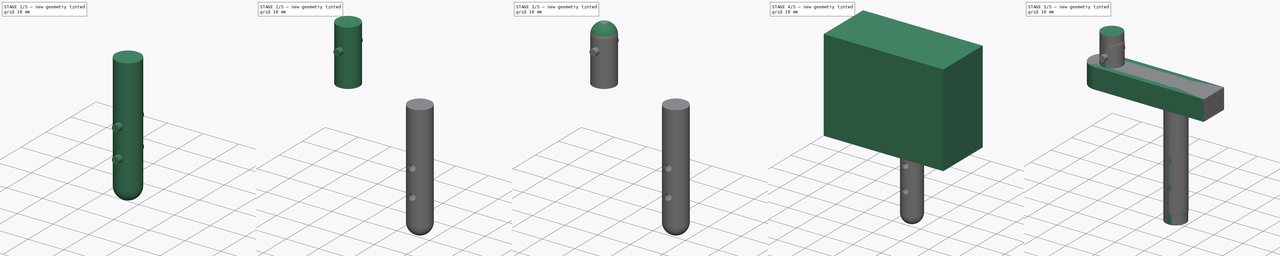
[diagram: build sequence overview — one tinted view per stage of 5, left to right]
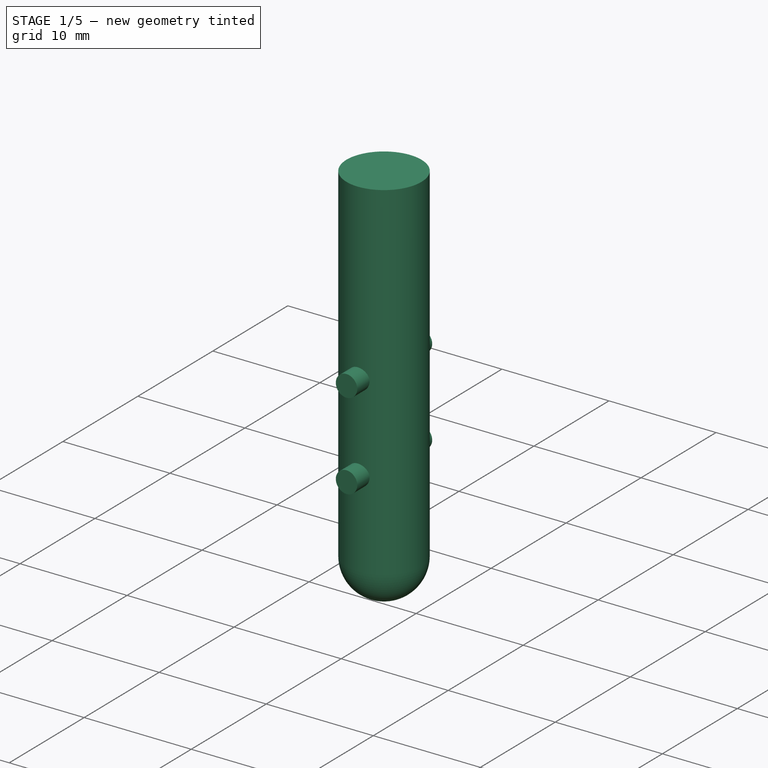
[diagram: stage 1 of 5 — iso view after this stage's code; geometry added in this stage tinted green]
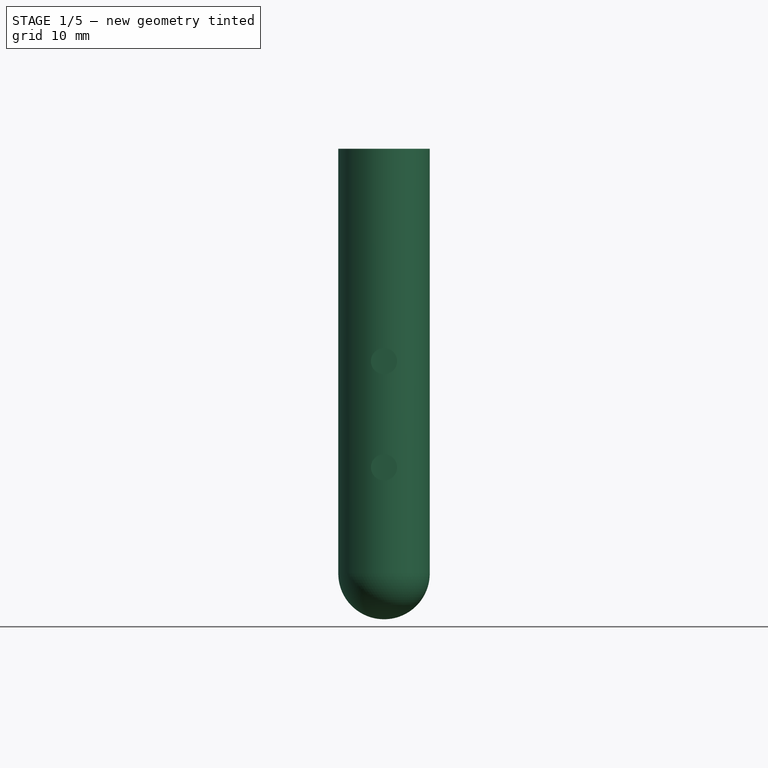
[diagram: stage 1 of 5 — front view after this stage's code; geometry added in this stage tinted green]
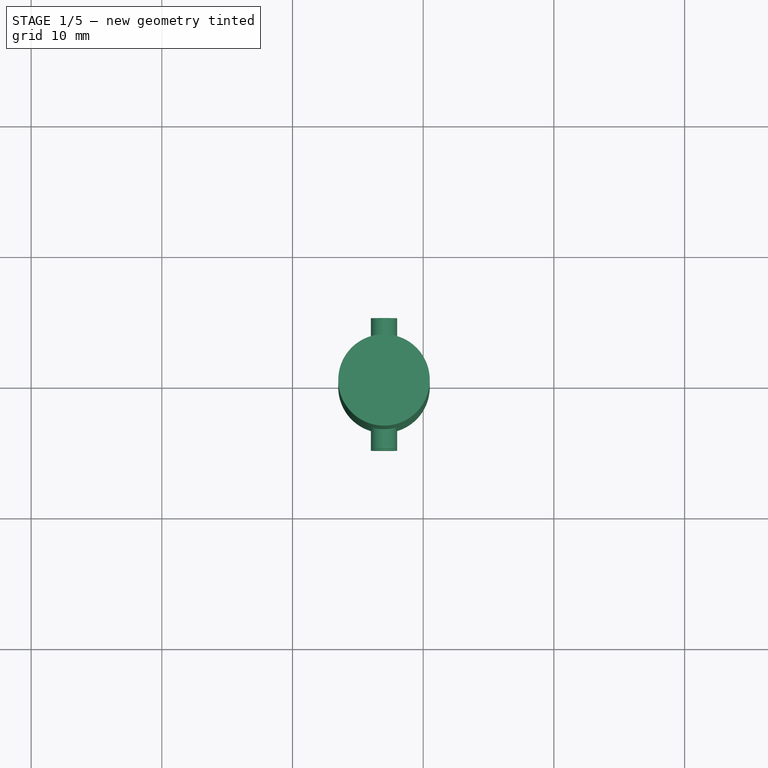
[diagram: stage 1 of 5 — top view after this stage's code; geometry added in this stage tinted green]
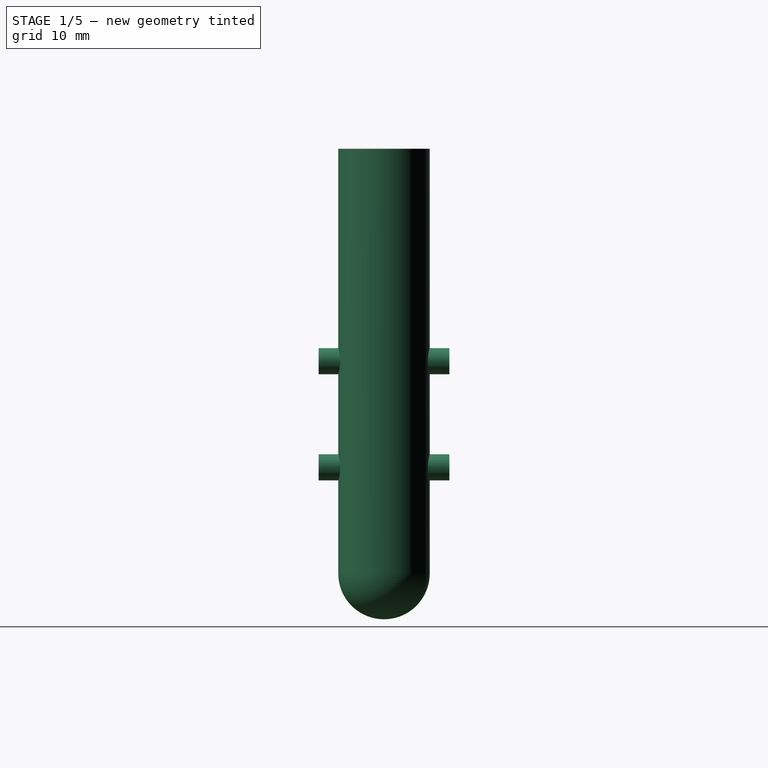
[diagram: stage 1 of 5 — right view after this stage's code; geometry added in this stage tinted green]
FCSTD DOCUMENT  (FreeCAD 0.16R)
Label: body-mount-front
License: All rights reserved
LicenseURL: http://en.wikipedia.org/wiki/All_rights_reserved
objects: PartDesign::Pad×12, Sketcher::SketchObject×11, Part::Cut×5, PartDesign::Fillet×2
note: 42 computed .brp shape members not serialized (recipe doc carries the construction recipe); baked Part::Feature solids carry a one-line shape summary decoded from their .brp

FEATURE [Sketcher::SketchObject] Sketch007
  sketch-geometry (2):
    g0: LineSegment [constr] StartX=0 StartY=0 StartZ=0 EndX=-13 EndY=0 EndZ=0
    g1: Circle CenterX=-13 CenterY=0 CenterZ=0 NormalX=0 NormalY=0 NormalZ=1 Radius=3.5
  constraints (5):
    c: Coincident(g0,g-1)
    c: Horizontal(g0)
    c: Distance(g0) = 13
    c: Radius(g1) = 3.5
    c: Coincident(g1,g0)
FEATURE [PartDesign::Pad] Pad007  label="pin_down"
  Length = 36
  Length2 = 100
  Reversed = true
  Sketch = -> Sketch007
  Type = 0
FEATURE [PartDesign::Fillet] Fillet001  label="pin_down_fillet"
  Base = -> Pad007 [Edge3]
  Radius = 3.5
FEATURE [Sketcher::SketchObject] Sketch009  label="hole_bottom"
  Placement = pos=(-13,0,-24.375) rot=(1,0,0;1.5708rad)
  sketch-geometry (1):
    g0: Circle CenterX=0 CenterY=0 CenterZ=0 NormalX=0 NormalY=0 NormalZ=1 Radius=1
  constraints (2):
    c: Radius(g0) = 1
    c: Coincident(g0,g-1)
FEATURE [PartDesign::Pad] Pad010  label="hole_bottom001"
  Length = 10
  Length2 = 100
  Midplane = true
  Placement = pos=(-13,0,-24.375) rot=(1,0,0;1.5708rad)
  Sketch = -> Sketch009
  Type = 0
FEATURE [Sketcher::SketchObject] Sketch010
  Placement = pos=(-13,0,-16.25) rot=(-1,0,0;4.71239rad)
  sketch-geometry (1):
    g0: Circle CenterX=0 CenterY=0 CenterZ=0 NormalX=0 NormalY=0 NormalZ=1 Radius=1
  constraints (2):
    c: Radius(g0) = 1
    c: Coincident(g0,g-1)
FEATURE [PartDesign::Pad] Pad011  label="hole_mid"
  Length = 10
  Length2 = 100
  Midplane = true
  Placement = pos=(-13,0,-16.25) rot=(-1,0,0;4.71239rad)
  Sketch = -> Sketch010
  Type = 0
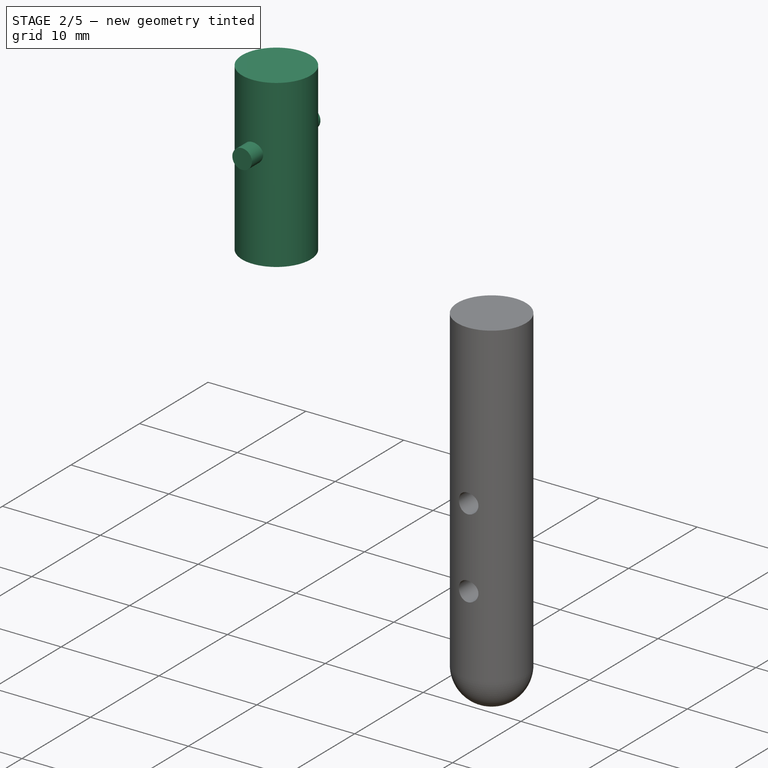
[diagram: stage 2 of 5 — iso view after this stage's code; geometry added in this stage tinted green]
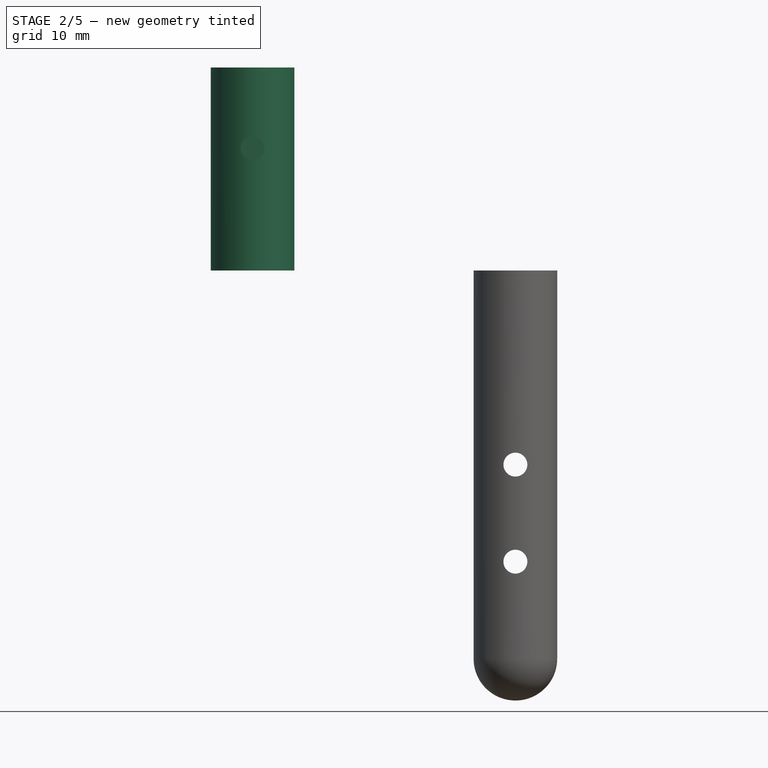
[diagram: stage 2 of 5 — front view after this stage's code; geometry added in this stage tinted green]
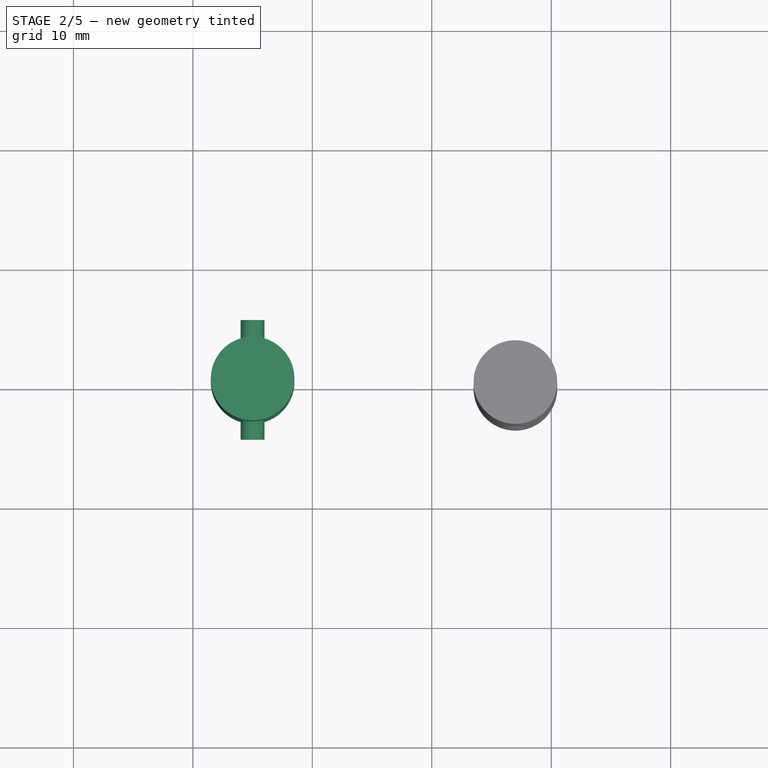
[diagram: stage 2 of 5 — top view after this stage's code; geometry added in this stage tinted green]
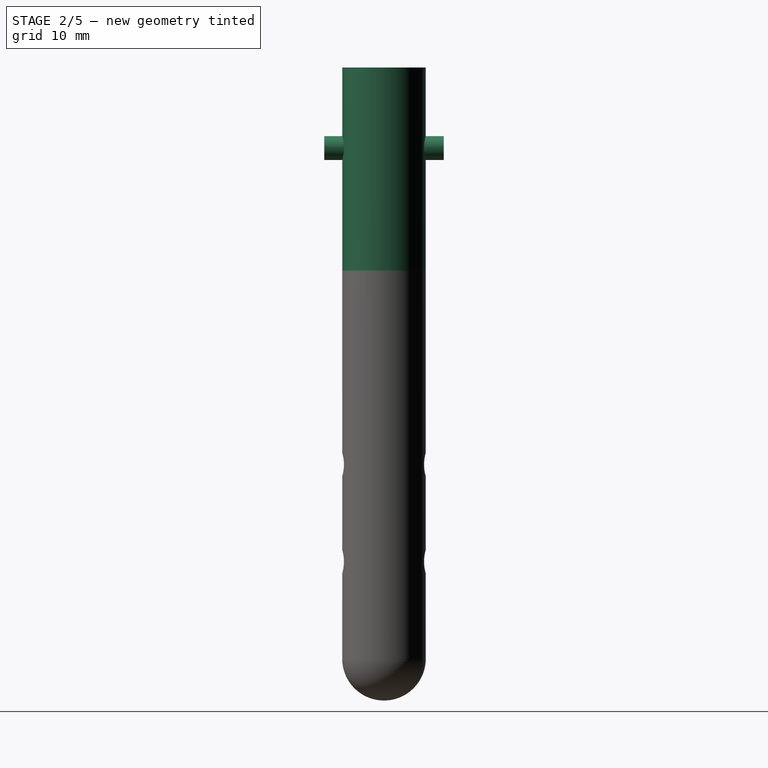
[diagram: stage 2 of 5 — right view after this stage's code; geometry added in this stage tinted green]
FEATURE [Sketcher::SketchObject] Sketch006
  sketch-geometry (2):
    g0: LineSegment [constr] StartX=0 StartY=0 StartZ=0 EndX=-35 EndY=0 EndZ=0
    g1: Circle CenterX=-35 CenterY=0 CenterZ=0 NormalX=0 NormalY=0 NormalZ=1 Radius=3.5
  constraints (4):
    c: Horizontal(g0)
    c: Distance(g0) = 35
    c: Radius(g1) = 3.5
    c: Coincident(g1,g0)
FEATURE [PartDesign::Pad] Pad006  label="pin_up"
  Length = 17
  Length2 = 100
  Sketch = -> Sketch006
  Type = 0
FEATURE [PartDesign::Pad] Pad009  label="hole_up001"
  Length = 10
  Length2 = 100
  Midplane = true
  Placement = pos=(-35,0,10.25) rot=(1,0,0;1.5708rad)
  Sketch = -> Sketch008
  Type = 0
FEATURE [Part::Cut] Cut003  label="pin_down001"
  Base = -> Fillet001
  Tool = -> Pad010
FEATURE [Part::Cut] Cut004
  Base = -> Cut003
  Tool = -> Pad011
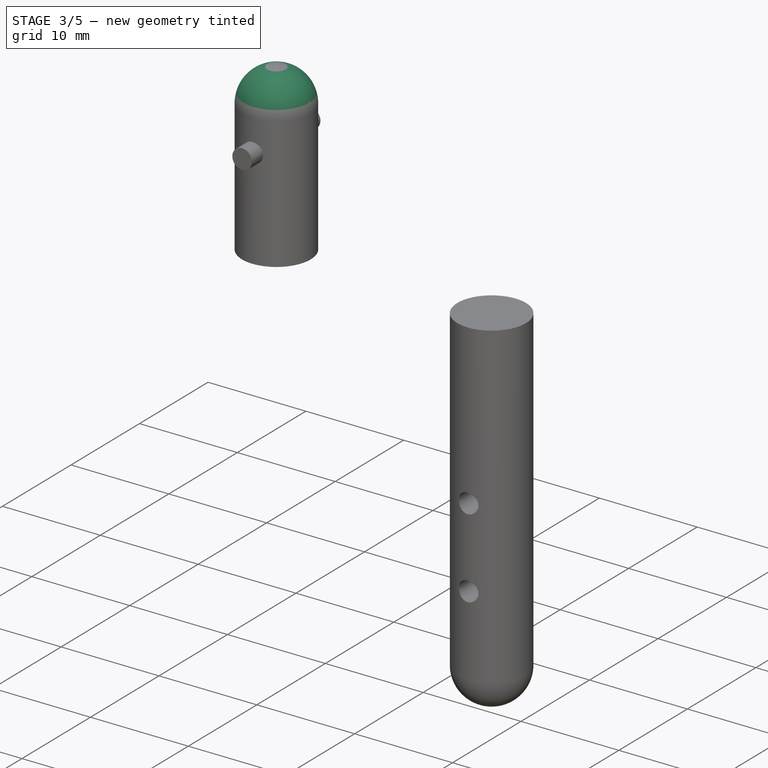
[diagram: stage 3 of 5 — iso view after this stage's code; geometry added in this stage tinted green]
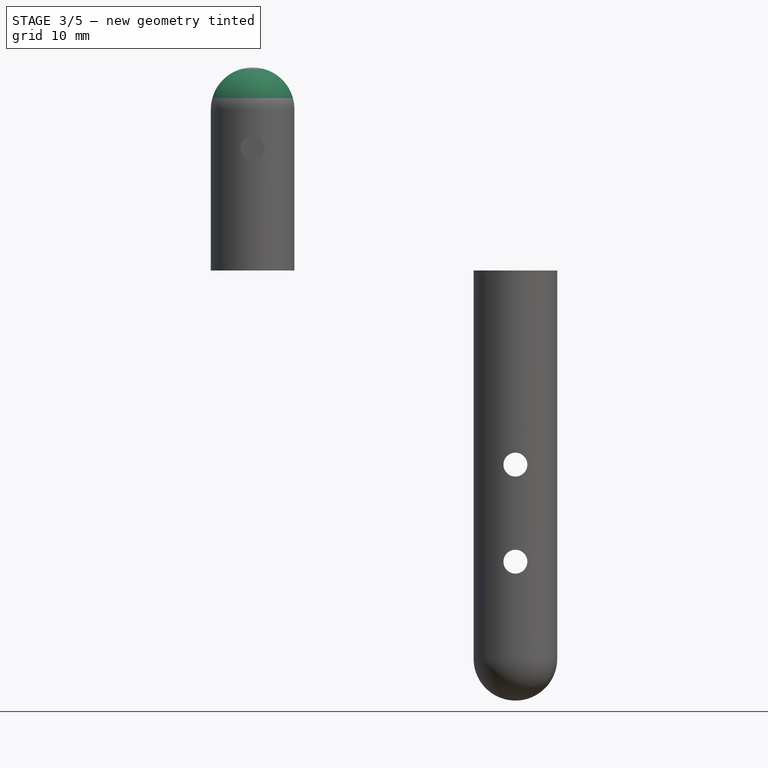
[diagram: stage 3 of 5 — front view after this stage's code; geometry added in this stage tinted green]
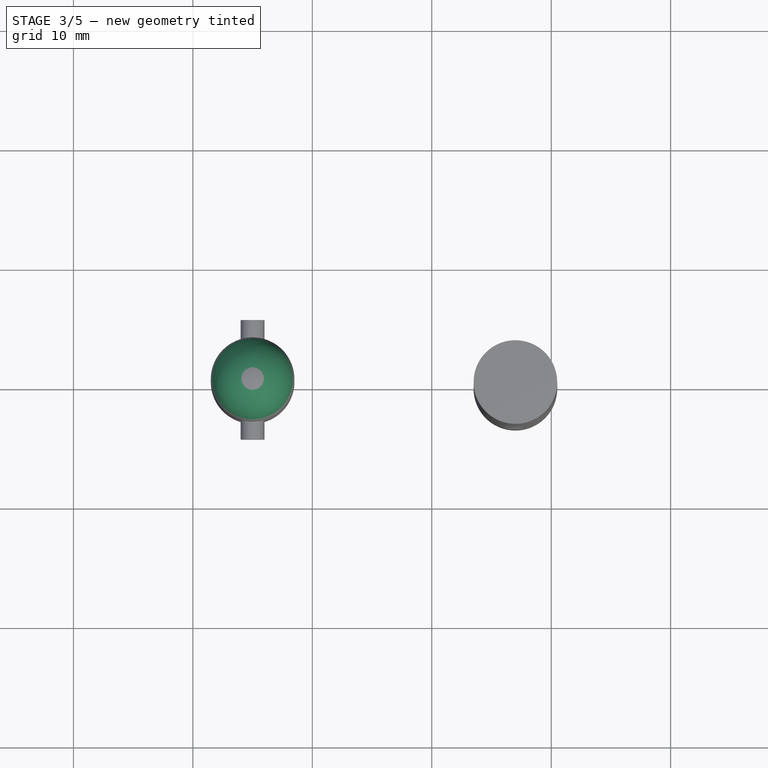
[diagram: stage 3 of 5 — top view after this stage's code; geometry added in this stage tinted green]
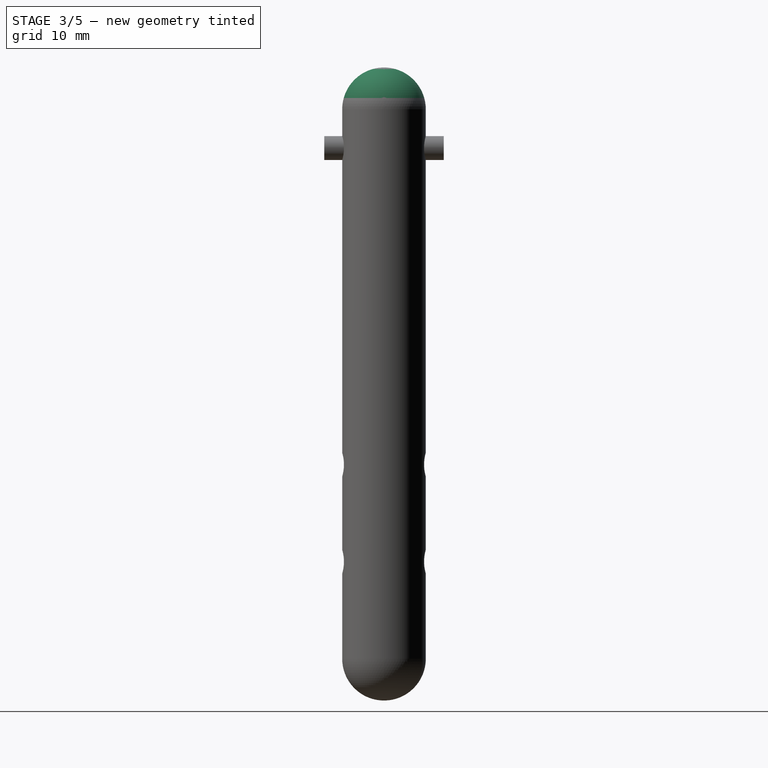
[diagram: stage 3 of 5 — right view after this stage's code; geometry added in this stage tinted green]
FEATURE [PartDesign::Fillet] Fillet  label="pin_up_fillet"
  Base = -> Pad006 [Edge3]
  Radius = 3.5
FEATURE [Sketcher::SketchObject] Sketch008  label="hole_up"
  Placement = pos=(-35,0,10.25) rot=(1,0,0;1.5708rad)
  sketch-geometry (1):
    g0: Circle CenterX=0 CenterY=0 CenterZ=0 NormalX=0 NormalY=0 NormalZ=1 Radius=1
  constraints (2):
    c: Coincident(g0,g-1)
    c: Radius(g0) = 1
FEATURE [PartDesign::Pad] Pad008  label="hole_up002"
  Length = 10
  Length2 = 100
  Midplane = true
  Placement = pos=(-35,0,10.25) rot=(1,0,0;1.5708rad)
  Sketch = -> Sketch008
  Type = 0
FEATURE [Part::Cut] Cut002  label="pin_up_cut"
  Base = -> Fillet
  Tool = -> Pad009
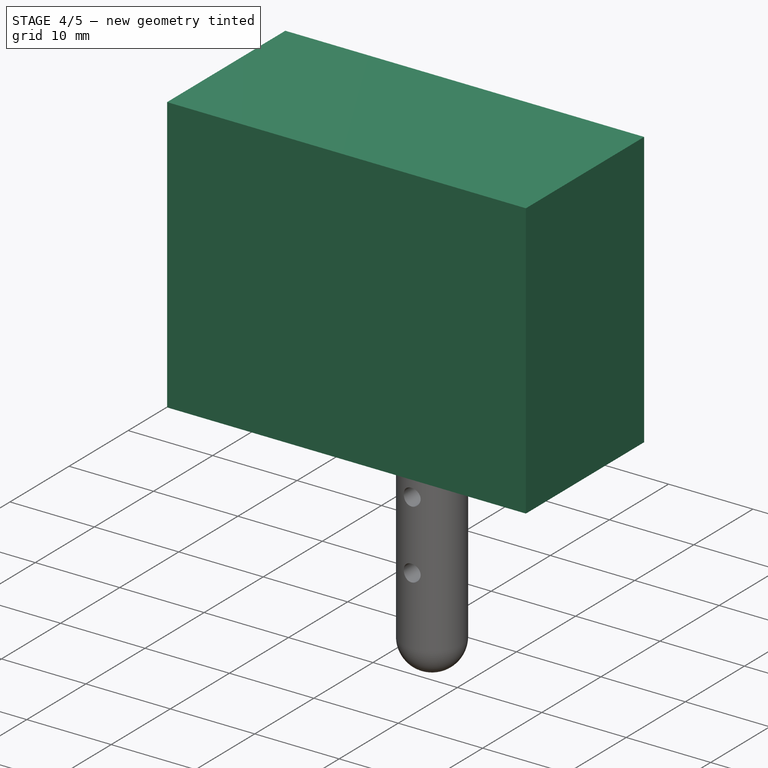
[diagram: stage 4 of 5 — iso view after this stage's code; geometry added in this stage tinted green]
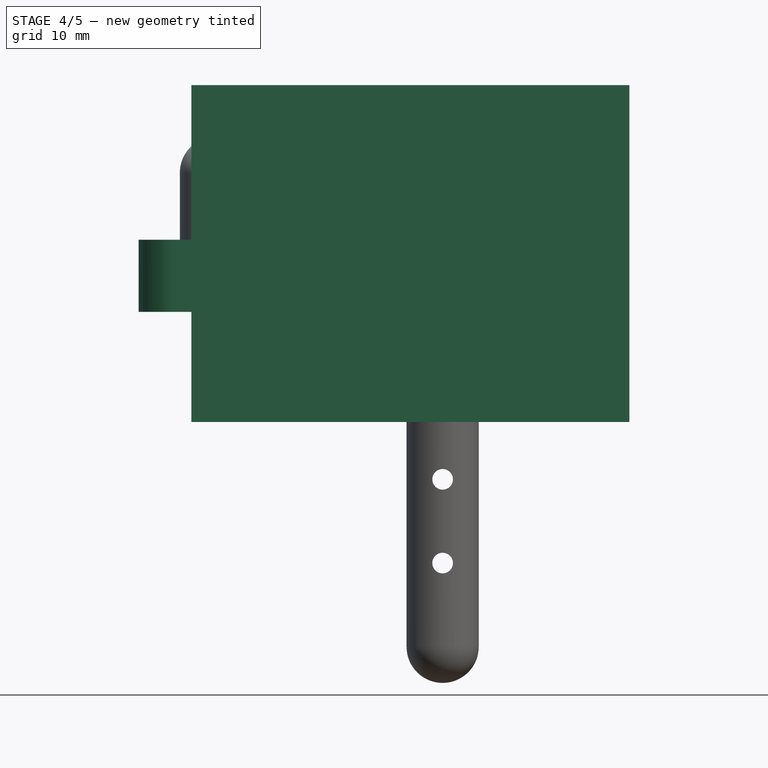
[diagram: stage 4 of 5 — front view after this stage's code; geometry added in this stage tinted green]
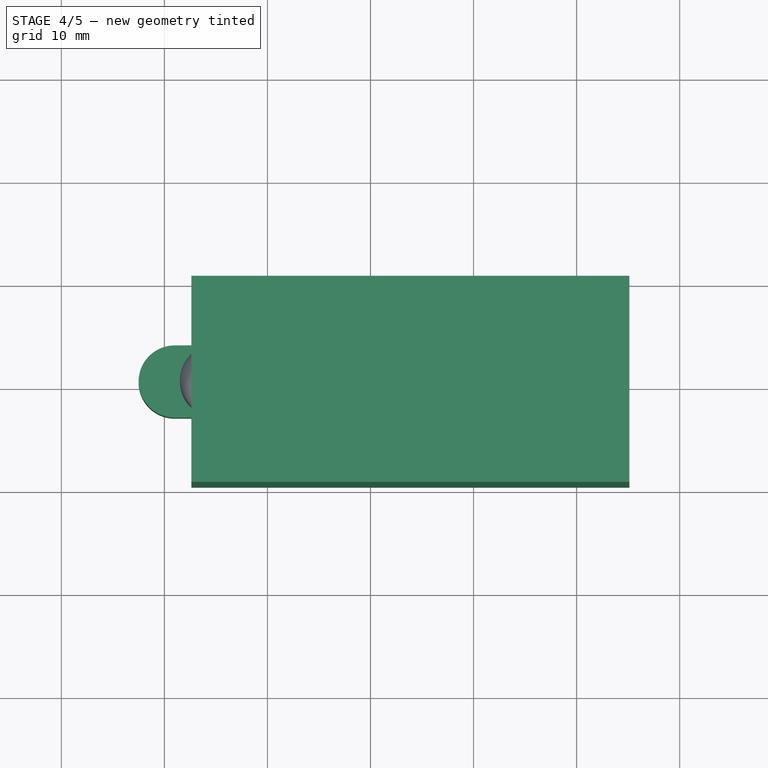
[diagram: stage 4 of 5 — top view after this stage's code; geometry added in this stage tinted green]
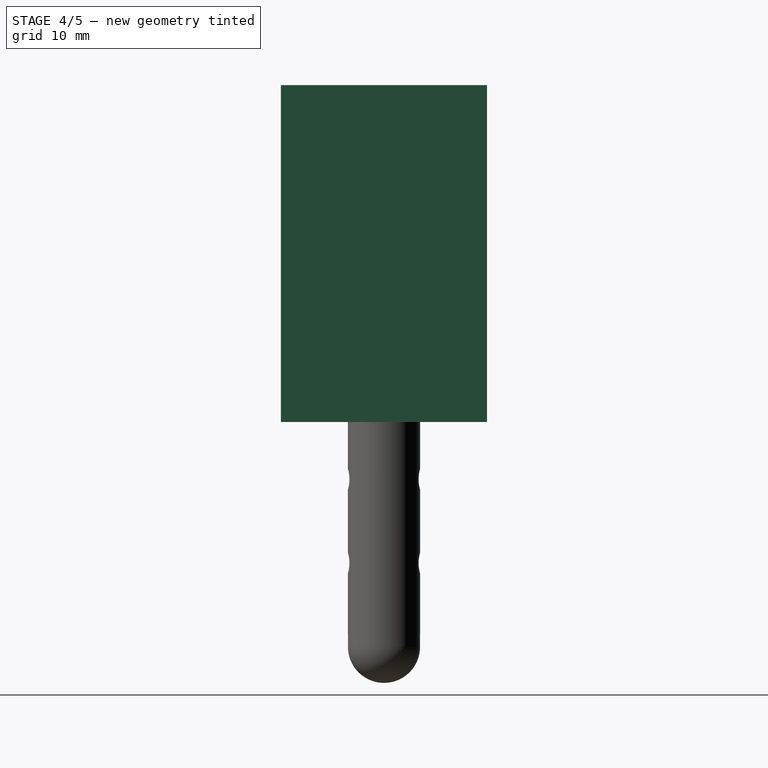
[diagram: stage 4 of 5 — right view after this stage's code; geometry added in this stage tinted green]
FEATURE [Sketcher::SketchObject] Sketch003
  Placement = pos=(0,0,30) rot=(1,0,0;1.5708rad)
  sketch-geometry (4):
    g0: LineSegment StartX=-37.3776 StartY=-40.6836 StartZ=0 EndX=5.12244 EndY=-40.6836 EndZ=0
    g1: LineSegment StartX=5.12244 StartY=-40.6836 StartZ=0 EndX=5.12244 EndY=-7.9994 EndZ=0
    g2: LineSegment StartX=5.12244 StartY=-7.9994 StartZ=0 EndX=-37.3776 EndY=-7.9994 EndZ=0
    g3: LineSegment StartX=-37.3776 StartY=-7.9994 StartZ=0 EndX=-37.3776 EndY=-40.6836 EndZ=0
  constraints (9):
    c: Coincident(g0,g1)
    c: Coincident(g1,g2)
    c: Coincident(g2,g3)
    c: Coincident(g3,g0)
    c: Horizontal(g0)
    c: Horizontal(g2)
    c: Vertical(g1)
    c: Vertical(g3)
    c: Distance(g2) = 42.5
FEATURE [PartDesign::Pad] Pad003
  Length = 20
  Length2 = 100
  Midplane = true
  Placement = pos=(0,0,30) rot=(1,0,0;1.5708rad)
  Sketch = -> Sketch003
  Type = 0
FEATURE [Sketcher::SketchObject] Sketch004
  sketch-geometry (4):
    g0: ArcOfCircle CenterX=0 CenterY=0 CenterZ=0 NormalX=0 NormalY=0 NormalZ=1 Radius=3.5 StartAngle=4.71239 EndAngle=7.85398
    g1: ArcOfCircle CenterX=-39 CenterY=0 CenterZ=0 NormalX=0 NormalY=0 NormalZ=1 Radius=3.5 StartAngle=1.5708 EndAngle=4.71239
    g2: LineSegment StartX=0 StartY=3.5 StartZ=0 EndX=-39 EndY=3.5 EndZ=0
    g3: LineSegment StartX=0 StartY=-3.5 StartZ=0 EndX=-39 EndY=-3.5 EndZ=0
  constraints (8):
    c: Tangent(g0,g3) = 1.5708
    c: Tangent(g0,g2) = -1.5708
    c: Tangent(g2,g1) = -1.5708
    c: Tangent(g3,g1) = 1.5708
    c: Horizontal(g2)
    c: Equal(g0,g1)
    c: Distance(g0,g0) = 7
    c: Distance(g3) = 39
FEATURE [PartDesign::Pad] Pad004
  Length = 7
  Length2 = 100
  Sketch = -> Sketch004
  Type = 0
FEATURE [Sketcher::SketchObject] Sketch005
  sketch-geometry (4):
    g0: LineSegment StartX=10 StartY=10 StartZ=0 EndX=0 EndY=10 EndZ=0
    g1: LineSegment StartX=0 StartY=10 StartZ=0 EndX=0 EndY=-10 EndZ=0
    g2: LineSegment StartX=0 StartY=-10 StartZ=0 EndX=10 EndY=-10 EndZ=0
    g3: LineSegment StartX=10 StartY=-10 StartZ=0 EndX=10 EndY=10 EndZ=0
  constraints (9):
    c: Coincident(g0,g1)
    c: Coincident(g1,g2)
    c: Coincident(g2,g3)
    c: Coincident(g3,g0)
    c: Horizontal(g0)
    c: Horizontal(g2)
    c: Vertical(g1)
    c: Vertical(g3)
    c: PointOnObject(g1,g-2)
FEATURE [PartDesign::Pad] Pad005
  Length = 10
  Length2 = 100
  Sketch = -> Sketch005
  Type = 0
FEATURE [Part::Cut] Cut001  label="base_plate"
  Base = -> Pad004
  Tool = -> Pad005
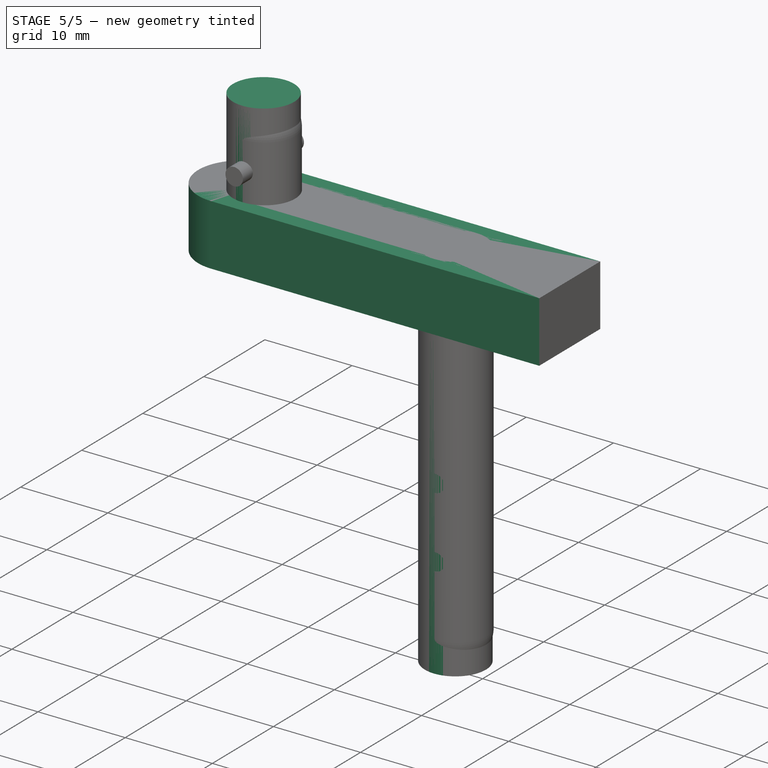
[diagram: stage 5 of 5 — iso view after this stage's code; geometry added in this stage tinted green]
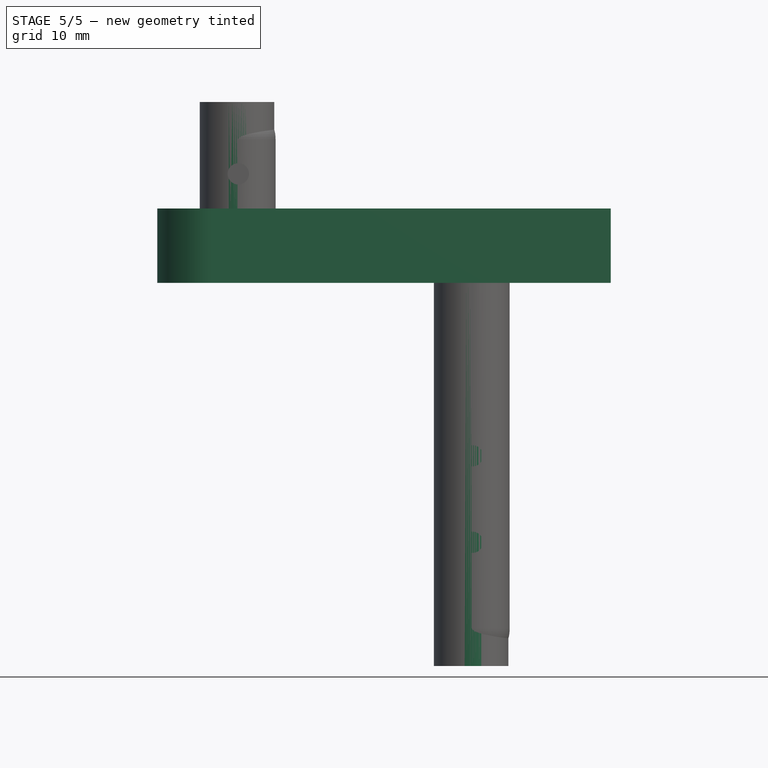
[diagram: stage 5 of 5 — front view after this stage's code; geometry added in this stage tinted green]
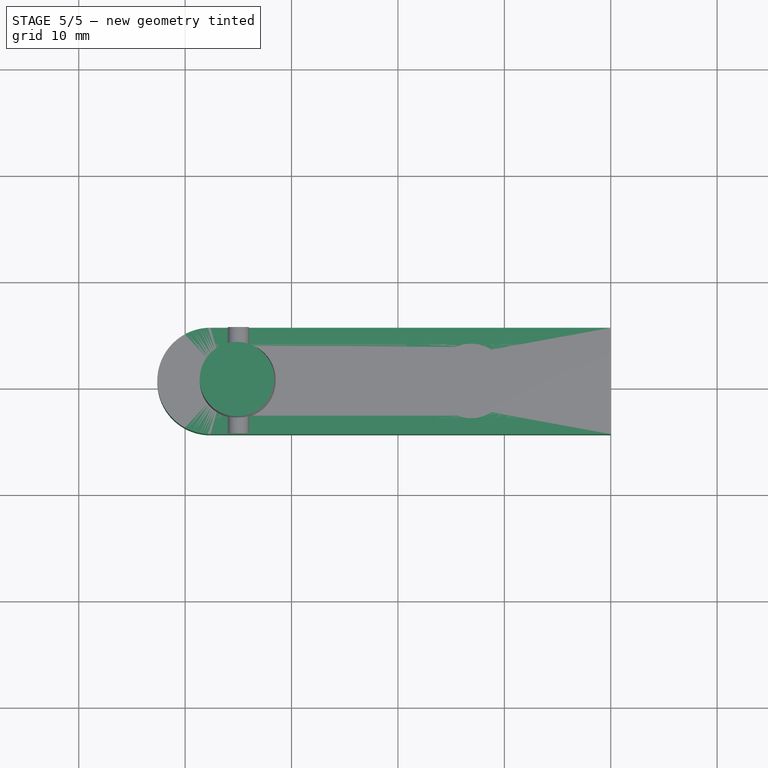
[diagram: stage 5 of 5 — top view after this stage's code; geometry added in this stage tinted green]
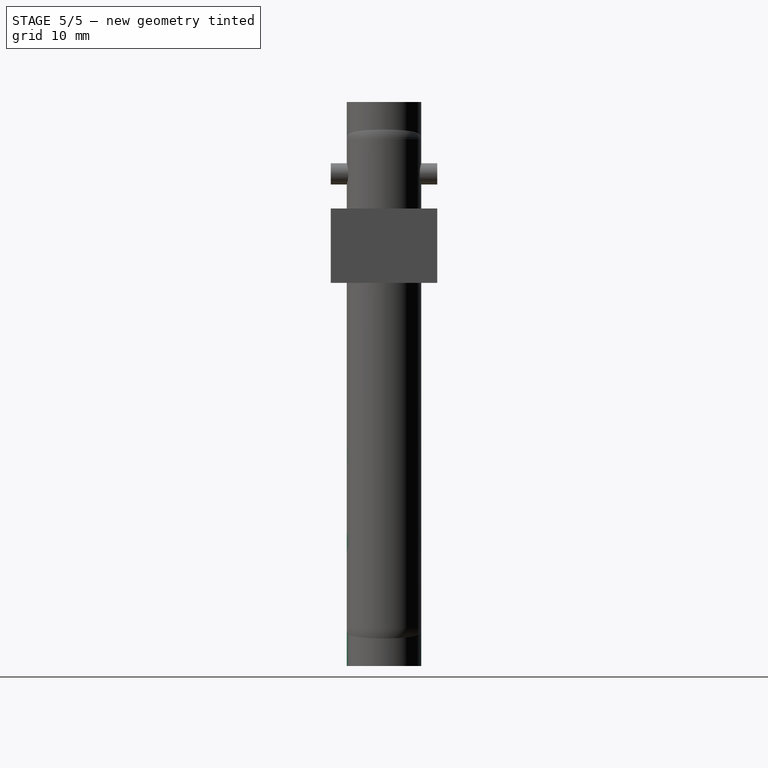
[diagram: stage 5 of 5 — right view after this stage's code; geometry added in this stage tinted green]
FEATURE [Sketcher::SketchObject] Sketch
  sketch-geometry (4):
    g0: ArcOfCircle CenterX=0 CenterY=0 CenterZ=0 NormalX=0 NormalY=0 NormalZ=1 Radius=5 StartAngle=4.71239 EndAngle=7.85398
    g1: ArcOfCircle CenterX=-74.999 CenterY=0 CenterZ=0 NormalX=0 NormalY=0 NormalZ=1 Radius=5 StartAngle=1.5708 EndAngle=4.71239
    g2: LineSegment StartX=0 StartY=5 StartZ=0 EndX=-74.999 EndY=5 EndZ=0
    g3: LineSegment StartX=0 StartY=-5 StartZ=0 EndX=-74.999 EndY=-5 EndZ=0
  constraints (7):
    c: Tangent(g0,g3) = 1.5708
    c: Tangent(g0,g2) = -1.5708
    c: Tangent(g2,g1) = -1.5708
    c: Tangent(g3,g1) = 1.5708
    c: Horizontal(g2)
    c: Equal(g0,g1)
    c: Coincident(g0,g-1)
FEATURE [PartDesign::Pad] Pad
  Length = 7
  Length2 = 100
  Sketch = -> Sketch
  Type = 0
FEATURE [Sketcher::SketchObject] Sketch001
  Placement = pos=(0,0,7) rot=(0,0,1;0rad)
  Support = -> Pad [Face6]
  sketch-geometry (1):
    g0: Circle CenterX=-72.5 CenterY=0 CenterZ=0 NormalX=0 NormalY=0 NormalZ=1 Radius=3.5
  constraints (1):
    c: PointOnObject(g0,g-1)
FEATURE [PartDesign::Pad] Pad001
  Length = 10
  Length2 = 100
  Sketch = -> Sketch001
  Type = 0
FEATURE [Sketcher::SketchObject] Sketch002
  Placement = pos=(0,0,7) rot=(0,0,1;0rad)
  Support = -> Pad001 [Face5]
  sketch-geometry (7):
    g0: LineSegment [constr] StartX=-80 StartY=10 StartZ=0 EndX=-80 EndY=-10 EndZ=0
    g1: LineSegment [constr] StartX=-76 StartY=10 StartZ=0 EndX=-76 EndY=-10 EndZ=0
    g2: LineSegment [constr] StartX=-53.993 StartY=10 StartZ=0 EndX=-53.993 EndY=-10 EndZ=0
    g3: LineSegment [constr] StartX=-76 StartY=-11.9858 StartZ=0 EndX=-54 EndY=-12 EndZ=0
    g4: LineSegment [constr] StartX=-54 StartY=-13 StartZ=0 EndX=-50.5 EndY=-13 EndZ=0
    g5: LineSegment [constr] StartX=-50.5 StartY=10.0375 StartZ=0 EndX=-50.5 EndY=-10 EndZ=0
    g6: Circle CenterX=-50.5 CenterY=0 CenterZ=0 NormalX=0 NormalY=0 NormalZ=1 Radius=3.5
  constraints (3):
    c: Distance(g3) = 22
    c: Horizontal(g4)
    c: Distance(g4) = 3.5
FEATURE [PartDesign::Pad] Pad002
  Length = 43
  Length2 = 100
  Reversed = true
  Sketch = -> Sketch002
  Type = 0
FEATURE [Part::Cut] Cut  label="without_holes"
  Base = -> Pad002
  Placement = pos=(37.3776,0,0) rot=(0,0,1;0rad)
  Tool = -> Pad003
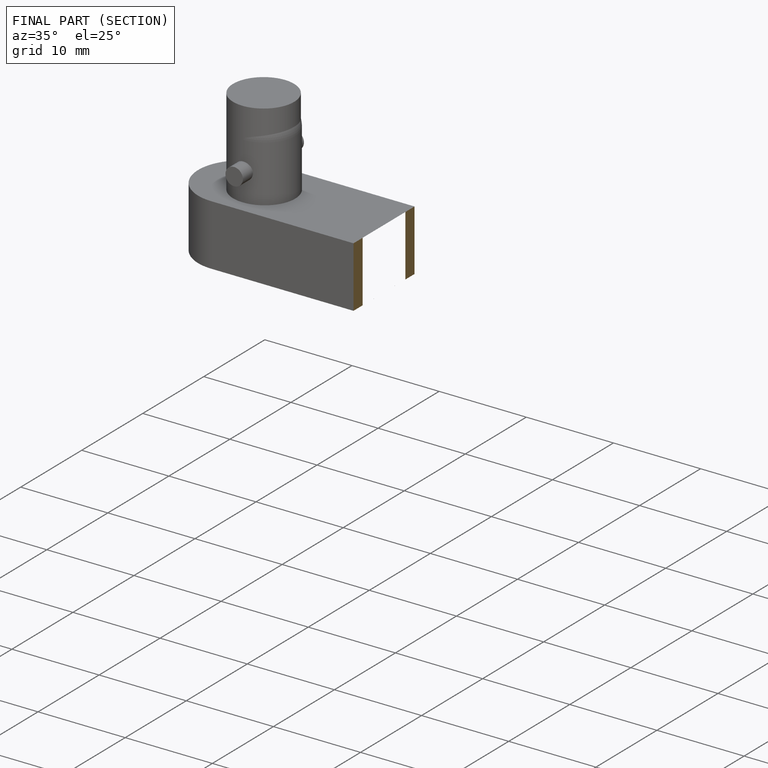
[diagram: finished part — half-section view (interior)]
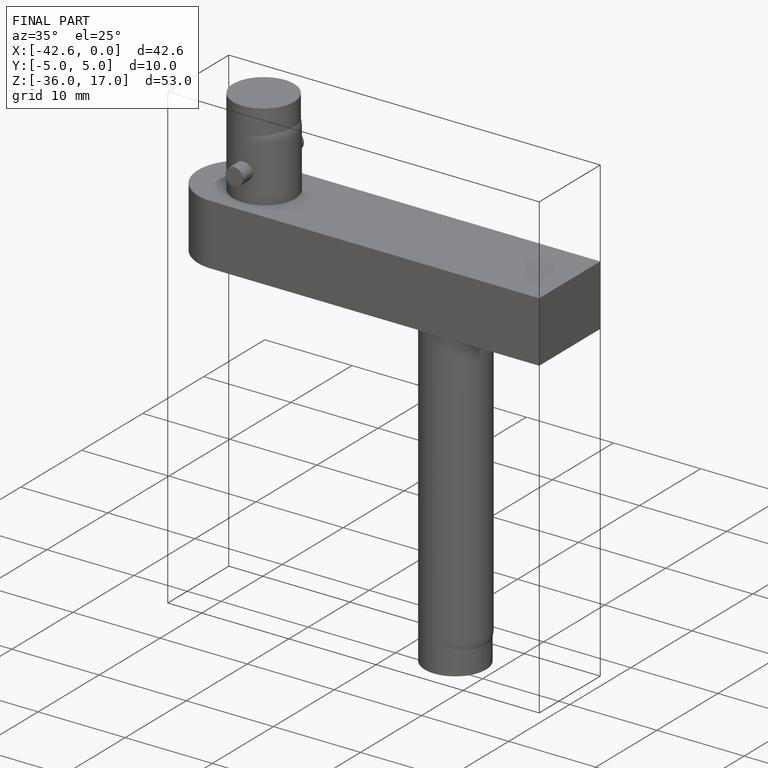
[diagram: finished part — iso view with bounding-box wireframe]
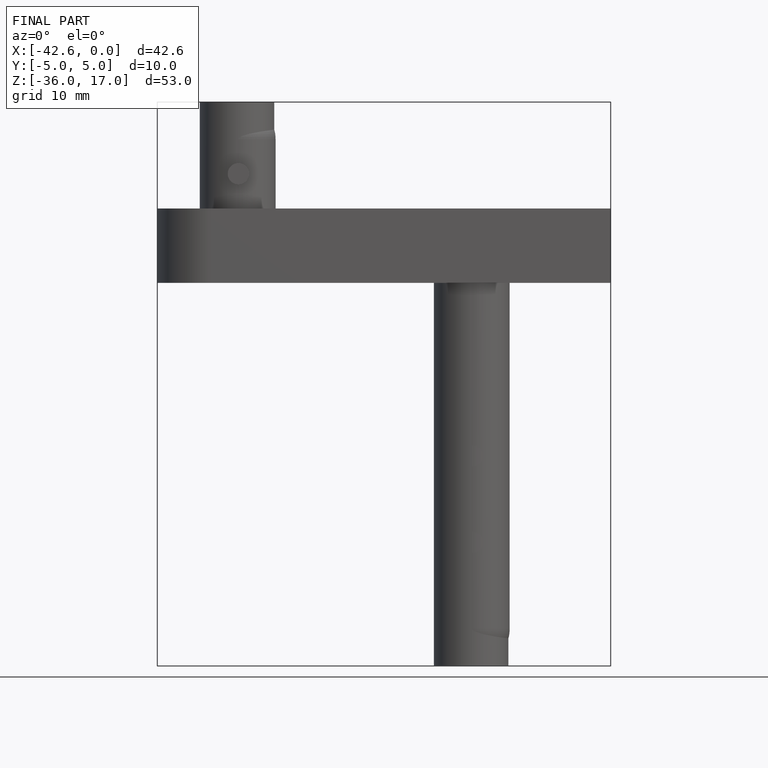
[diagram: finished part — front view with bounding-box wireframe]
